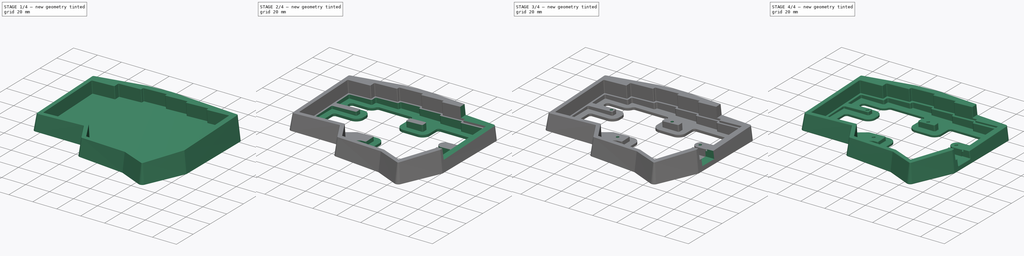
[diagram: build sequence overview — one tinted view per stage of 4, left to right]
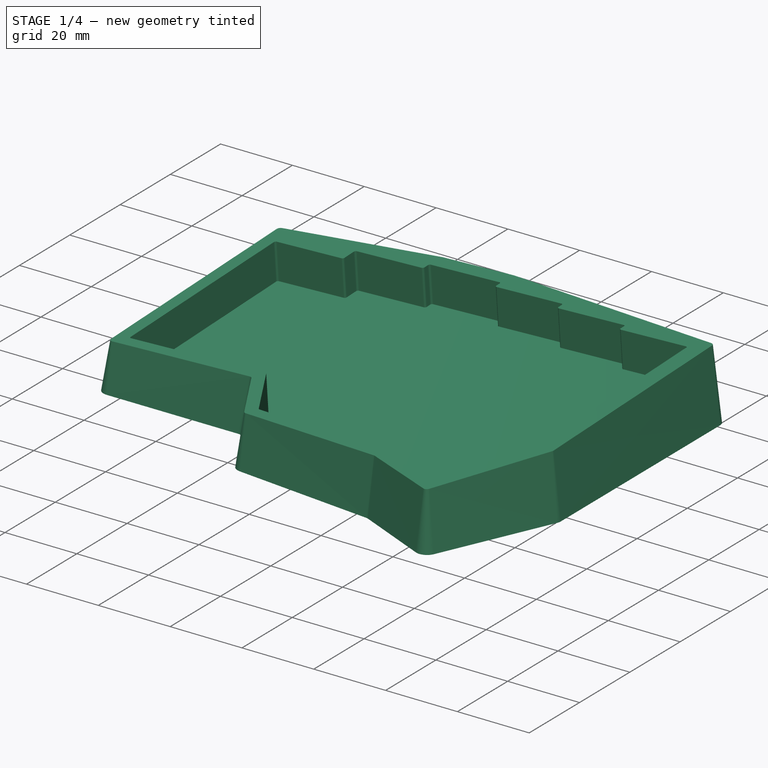
[diagram: stage 1 of 4 — iso view after this stage's code; geometry added in this stage tinted green]
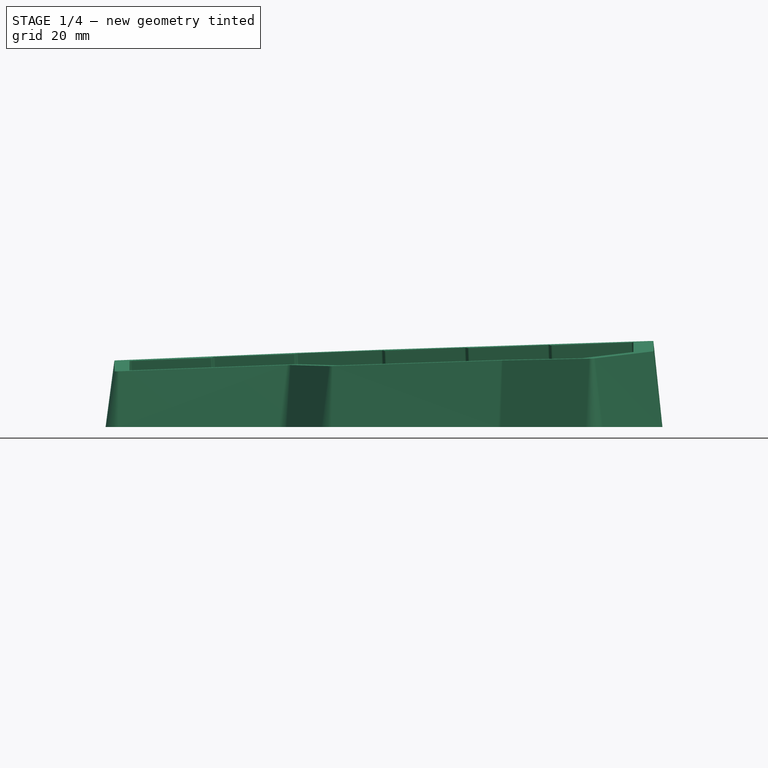
[diagram: stage 1 of 4 — front view after this stage's code; geometry added in this stage tinted green]
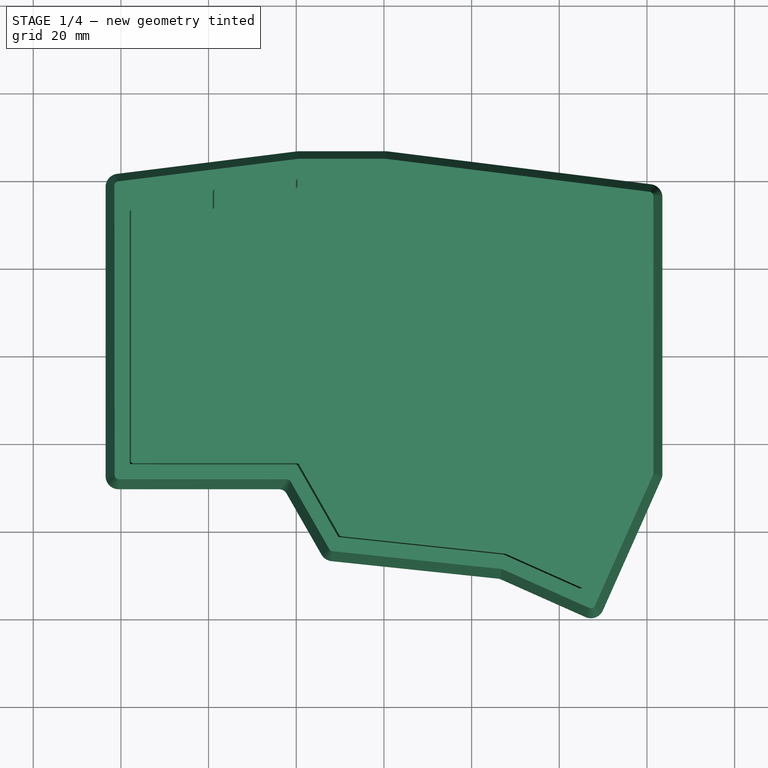
[diagram: stage 1 of 4 — top view after this stage's code; geometry added in this stage tinted green]
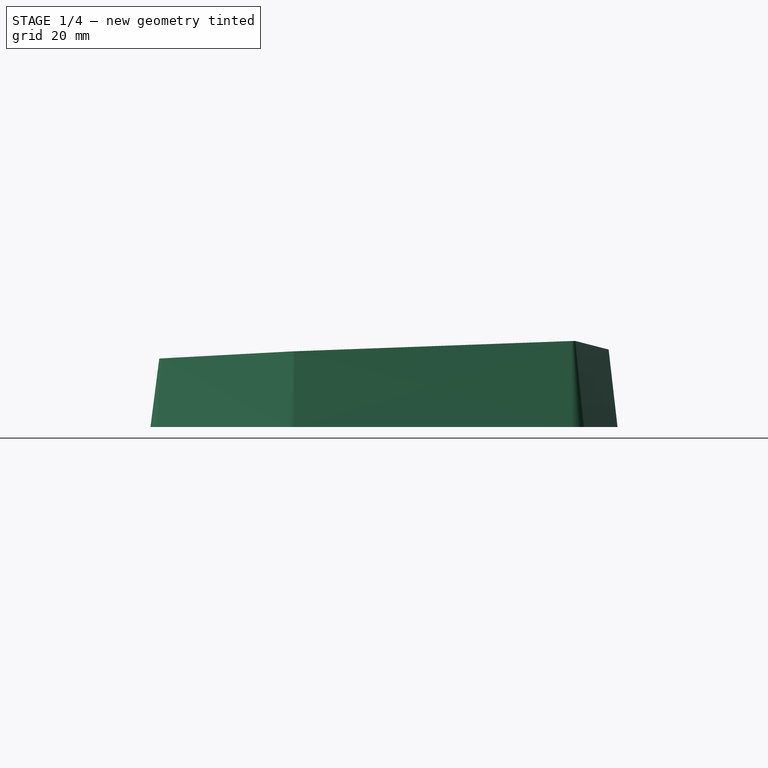
[diagram: stage 1 of 4 — right view after this stage's code; geometry added in this stage tinted green]
FCSTD DOCUMENT  (FreeCAD 0.20R)
Label: case
License: All rights reserved
LicenseURL: http://en.wikipedia.org/wiki/All_rights_reserved
objects: Sketcher::SketchObject×8, PartDesign::Pocket×5, PartDesign::Fillet×2, PartDesign::AdditiveLoft×1, PartDesign::Hole×1, PartDesign::Chamfer×1, PartDesign::Body×1
note: 29 computed .brp shape members not serialized (recipe doc carries the construction recipe); baked Part::Feature solids carry a one-line shape summary decoded from their .brp

FEATURE [Sketcher::SketchObject] Sketch
  FullyConstrained = false
  MapMode = 5
  Support = -> [XY_Plane]
  sketch-geometry (20):
    g0: LineSegment StartX=0.809664 StartY=46.8519 StartZ=0 EndX=60.906 EndY=39.3443 EndZ=0
    g1: LineSegment StartX=63.5342 StartY=-26.7612 StartZ=0 EndX=63.5342 EndY=36.3675 EndZ=0
    g2: LineSegment StartX=63.2748 StartY=-27.9814 StartZ=0 EndX=49.9566 EndY=-57.8945 EndZ=0
    g3: LineSegment StartX=-63.5 StartY=38.7422 StartZ=0 EndX=-63.5 EndY=-27.25 EndZ=0
    g4: LineSegment StartX=-60.8721 StartY=41.7191 StartZ=0 EndX=-19.8098 EndY=46.8518 EndZ=0
    g5: LineSegment StartX=0.437779 StartY=46.875 StartZ=0 EndX=-19.4377 EndY=46.875 EndZ=0
    g6: ArcOfCircle CenterX=60.5342 CenterY=36.3675 CenterZ=0 NormalX=0 NormalY=0 NormalZ=1 AngleXU=0 Radius=3 StartAngle=0 EndAngle=1.44652
    g7: ArcOfCircle CenterX=0.437779 CenterY=43.875 CenterZ=0 NormalX=0 NormalY=0 NormalZ=1 AngleXU=0 Radius=3 StartAngle=1.44652 EndAngle=1.5708
    g8: ArcOfCircle CenterX=-19.4377 CenterY=43.875 CenterZ=0 NormalX=0 NormalY=0 NormalZ=1 AngleXU=0 Radius=3 StartAngle=1.5708 EndAngle=1.69515
    g9: ArcOfCircle CenterX=-60.5 CenterY=38.7422 CenterZ=0 NormalX=0 NormalY=0 NormalZ=1 AngleXU=0 Radius=3 StartAngle=1.69515 EndAngle=3.14159
    g10: ArcOfCircle CenterX=-60.5 CenterY=-27.25 CenterZ=0 NormalX=0 NormalY=0 NormalZ=1 AngleXU=0 Radius=3 StartAngle=3.14159 EndAngle=4.71239
    g11: ArcOfCircle CenterX=-11.6492 CenterY=-43.6684 CenterZ=0 NormalX=0 NormalY=0 NormalZ=1 AngleXU=0 Radius=3 StartAngle=3.66074 EndAngle=4.60767
    g12: LineSegment StartX=-60.5 StartY=-30.25 StartZ=0 EndX=-23.9327 EndY=-30.25 EndZ=0
    g13: LineSegment StartX=-22.1963 StartY=-31.2577 StartZ=0 EndX=-14.2539 EndY=-45.1568 EndZ=0
    g14: ArcOfCircle CenterX=-23.9327 CenterY=-32.25 CenterZ=0 NormalX=0 NormalY=0 NormalZ=1 AngleXU=0 Radius=2 StartAngle=0.519146 EndAngle=1.5708
    g15: LineSegment StartX=-11.9628 StartY=-46.652 StartZ=0 EndX=26.0665 EndY=-50.649 EndZ=0
    g16: LineSegment StartX=26.6709 StartY=-50.8109 StartZ=0 EndX=45.9958 EndY=-59.4149 EndZ=0
    g17: ArcOfCircle CenterX=25.8574 CenterY=-52.638 CenterZ=0 NormalX=0 NormalY=0 NormalZ=1 AngleXU=0 Radius=2 StartAngle=1.15192 EndAngle=1.46608
    g18: ArcOfCircle CenterX=47.216 CenterY=-56.6743 CenterZ=0 NormalX=0 NormalY=0 NormalZ=1 AngleXU=0 Radius=3 StartAngle=4.29351 EndAngle=5.86431
    g19: ArcOfCircle CenterX=60.5342 CenterY=-26.7612 CenterZ=0 NormalX=0 NormalY=0 NormalZ=1 AngleXU=0 Radius=3 StartAngle=5.86431 EndAngle=6.28319
  constraints (20):
    c: Coincident(g3,g10)
    c: Coincident(g3,g9)
    c: Coincident(g4,g9)
    c: Coincident(g10,g12)
    c: Coincident(g12,g14)
    c: Coincident(g13,g14)
    c: Coincident(g4,g8)
    c: Coincident(g5,g8)
    c: Coincident(g11,g13)
    c: Coincident(g11,g15)
    c: Coincident(g5,g7)
    c: Coincident(g0,g7)
    c: Coincident(g15,g17)
    c: Coincident(g16,g17)
    c: Coincident(g16,g18)
    c: Coincident(g2,g18)
    c: Coincident(g0,g6)
    c: Coincident(g2,g19)
    c: Coincident(g1,g19)
    c: Coincident(g1,g6)
FEATURE [Sketcher::SketchObject] Sketch001
  AttachmentOffset = pos=(0,0,16) rot=(0.707107,-0.707107,0;0.05236rad)
  FullyConstrained = false
  MapMode = 5
  Placement = pos=(0,0,16) rot=(0.707107,-0.707107,0;0.05236rad)
  Support = -> [XY_Plane]
  sketch-geometry (20):
    g0: ArcOfCircle CenterX=-60.5 CenterY=38.7422 CenterZ=0 NormalX=0 NormalY=0 NormalZ=1 AngleXU=0 Radius=1 StartAngle=1.69515 EndAngle=3.14159
    g1: LineSegment StartX=-60.624 StartY=39.7345 StartZ=0 EndX=-19.5618 EndY=44.8673 EndZ=0
    g2: ArcOfCircle CenterX=-19.4377 CenterY=43.875 CenterZ=0 NormalX=0 NormalY=0 NormalZ=1 AngleXU=0 Radius=1 StartAngle=1.5708 EndAngle=1.69515
    g3: LineSegment StartX=0.437779 StartY=44.875 StartZ=0 EndX=-19.4377 EndY=44.875 EndZ=0
    g4: ArcOfCircle CenterX=0.437779 CenterY=43.875 CenterZ=0 NormalX=0 NormalY=0 NormalZ=1 AngleXU=0 Radius=1 StartAngle=1.44652 EndAngle=1.5708
    g5: LineSegment StartX=0.561741 StartY=44.8673 StartZ=0 EndX=60.6581 EndY=37.3597 EndZ=0
    g6: ArcOfCircle CenterX=60.5342 CenterY=36.3675 CenterZ=0 NormalX=0 NormalY=0 NormalZ=1 AngleXU=0 Radius=1 StartAngle=0 EndAngle=1.44652
    g7: LineSegment StartX=61.5342 StartY=-26.7612 StartZ=0 EndX=61.5342 EndY=36.3675 EndZ=0
    g8: ArcOfCircle CenterX=60.5342 CenterY=-26.7612 CenterZ=0 NormalX=0 NormalY=0 NormalZ=1 AngleXU=0 Radius=1 StartAngle=5.86431 EndAngle=6.28319
    g9: LineSegment StartX=61.4477 StartY=-27.168 StartZ=0 EndX=48.1295 EndY=-57.081 EndZ=0
    g10: ArcOfCircle CenterX=47.216 CenterY=-56.6743 CenterZ=0 NormalX=0 NormalY=0 NormalZ=1 AngleXU=0 Radius=1 StartAngle=4.29351 EndAngle=5.86431
    g11: LineSegment StartX=27.0503 StartY=-48.7906 StartZ=0 EndX=46.8093 EndY=-57.5879 EndZ=0
    g12: ArcOfCircle CenterX=26.6436 CenterY=-49.7041 CenterZ=0 NormalX=0 NormalY=0 NormalZ=1 AngleXU=0 Radius=1 StartAngle=1.15192 EndAngle=1.46608
    g13: LineSegment StartX=-11.7537 StartY=-44.6629 StartZ=0 EndX=26.7481 EndY=-48.7096 EndZ=0
    g14: ArcOfCircle CenterX=-11.6492 CenterY=-43.6684 CenterZ=0 NormalX=0 NormalY=0 NormalZ=1 AngleXU=0 Radius=1 StartAngle=3.66074 EndAngle=4.60767
    g15: LineSegment StartX=-21.3235 StartY=-28.7539 StartZ=0 EndX=-12.5174 EndY=-44.1645 EndZ=0
    g16: ArcOfCircle CenterX=-22.1918 CenterY=-29.25 CenterZ=0 NormalX=0 NormalY=0 NormalZ=1 AngleXU=0 Radius=1 StartAngle=0.519146 EndAngle=1.5708
    g17: LineSegment StartX=-60.5 StartY=-28.25 StartZ=0 EndX=-22.1918 EndY=-28.25 EndZ=0
    g18: LineSegment StartX=-61.5 StartY=38.7422 StartZ=0 EndX=-61.5 EndY=-27.25 EndZ=0
    g19: ArcOfCircle CenterX=-60.5 CenterY=-27.25 CenterZ=0 NormalX=0 NormalY=0 NormalZ=1 AngleXU=0 Radius=1 StartAngle=3.14159 EndAngle=4.71239
  constraints (20):
    c: Coincident(g18,g19)
    c: Coincident(g0,g18)
    c: Coincident(g0,g1)
    c: Coincident(g17,g19)
    c: Coincident(g16,g17)
    c: Coincident(g15,g16)
    c: Coincident(g1,g2)
    c: Coincident(g2,g3)
    c: Coincident(g14,g15)
    c: Coincident(g13,g14)
    c: Coincident(g3,g4)
    c: Coincident(g4,g5)
    c: Coincident(g12,g13)
    c: Coincident(g11,g12)
    c: Coincident(g10,g11)
    c: Coincident(g9,g10)
    c: Coincident(g5,g6)
    c: Coincident(g8,g9)
    c: Coincident(g7,g8)
    c: Coincident(g6,g7)
FEATURE [PartDesign::AdditiveLoft] AdditiveLoft
  Closed = true
  Profile = -> Sketch001
  Ruled = true
  Sections = -> [Sketch]
FEATURE [Sketcher::SketchObject] Sketch002
  FullyConstrained = false
  MapMode = 5
  Placement = pos=(-0.591302,-0.591302,15.9562) rot=(0.707289,-0.706804,-0.013092;0.052364rad)
  Support = -> [AdditiveLoft]
  sketch-geometry (36):
    g0: ArcOfCircle CenterX=-57 CenterY=-23.75 CenterZ=0 NormalX=0 NormalY=0 NormalZ=1 AngleXU=0 Radius=0.5 StartAngle=3.14159 EndAngle=4.71239
    g1: LineSegment StartX=-57.5 StartY=33.25 StartZ=0 EndX=-57.5 EndY=-23.75 EndZ=0
    g2: ArcOfCircle CenterX=-57 CenterY=33.25 CenterZ=0 NormalX=0 NormalY=0 NormalZ=1 AngleXU=0 Radius=0.5 StartAngle=1.5708 EndAngle=3.14159
    g3: LineSegment StartX=-39 StartY=33.75 StartZ=0 EndX=-57 EndY=33.75 EndZ=0
    g4: ArcOfCircle CenterX=-39 CenterY=34.25 CenterZ=0 NormalX=0 NormalY=0 NormalZ=1 AngleXU=0 Radius=0.5 StartAngle=4.71239 EndAngle=6.28319
    g5: LineSegment StartX=-38.5 StartY=38 StartZ=0 EndX=-38.5 EndY=34.25 EndZ=0
    g6: ArcOfCircle CenterX=-38 CenterY=38 CenterZ=0 NormalX=0 NormalY=0 NormalZ=1 AngleXU=0 Radius=0.5 StartAngle=1.5708 EndAngle=3.14159
    g7: LineSegment StartX=-20 StartY=38.5 StartZ=0 EndX=-38 EndY=38.5 EndZ=0
    g8: ArcOfCircle CenterX=-20 CenterY=39 CenterZ=0 NormalX=0 NormalY=0 NormalZ=1 AngleXU=0 Radius=0.5 StartAngle=4.71239 EndAngle=6.28319
    g9: LineSegment StartX=-19.5 StartY=40.375 StartZ=0 EndX=-19.5 EndY=39 EndZ=0
    g10: ArcOfCircle CenterX=-19 CenterY=40.375 CenterZ=0 NormalX=0 NormalY=0 NormalZ=1 AngleXU=0 Radius=0.5 StartAngle=1.5708 EndAngle=3.14159
    g11: LineSegment StartX=0 StartY=40.875 StartZ=0 EndX=-19 EndY=40.875 EndZ=0
    g12: ArcOfCircle CenterX=0 CenterY=40.375 CenterZ=0 NormalX=0 NormalY=0 NormalZ=1 AngleXU=0 Radius=0.5 StartAngle=0 EndAngle=1.5708
    g13: LineSegment StartX=0.5 StartY=39 StartZ=0 EndX=0.5 EndY=40.375 EndZ=0
    g14: ArcOfCircle CenterX=1 CenterY=39 CenterZ=0 NormalX=0 NormalY=0 NormalZ=1 AngleXU=0 Radius=0.5 StartAngle=3.14159 EndAngle=4.71239
    g15: LineSegment StartX=19 StartY=38.5 StartZ=0 EndX=1 EndY=38.5 EndZ=0
    g16: ArcOfCircle CenterX=19 CenterY=38 CenterZ=0 NormalX=0 NormalY=0 NormalZ=1 AngleXU=0 Radius=0.5 StartAngle=0 EndAngle=1.5708
    g17: LineSegment StartX=19.5 StartY=36.625 StartZ=0 EndX=19.5 EndY=38 EndZ=0
    g18: ArcOfCircle CenterX=20 CenterY=36.625 CenterZ=0 NormalX=0 NormalY=0 NormalZ=1 AngleXU=0 Radius=0.5 StartAngle=3.14159 EndAngle=4.71239
    g19: LineSegment StartX=38 StartY=36.125 StartZ=0 EndX=20 EndY=36.125 EndZ=0
    g20: ArcOfCircle CenterX=38 CenterY=35.625 CenterZ=0 NormalX=0 NormalY=0 NormalZ=1 AngleXU=0 Radius=0.5 StartAngle=0 EndAngle=1.5708
    g21: LineSegment StartX=38.5 StartY=34.25 StartZ=0 EndX=38.5 EndY=35.625 EndZ=0
    g22: ArcOfCircle CenterX=39 CenterY=34.25 CenterZ=0 NormalX=0 NormalY=0 NormalZ=1 AngleXU=0 Radius=0.5 StartAngle=3.14159 EndAngle=4.71239
    g23: LineSegment StartX=39 StartY=33.75 StartZ=0 EndX=57.0342 EndY=33.75 EndZ=0
    g24: ArcOfCircle CenterX=57.0342 CenterY=33.25 CenterZ=0 NormalX=0 NormalY=0 NormalZ=1 AngleXU=0 Radius=0.5 StartAngle=0 EndAngle=1.5708
    g25: LineSegment StartX=57.5342 StartY=-26.0173 StartZ=0 EndX=57.5342 EndY=33.25 EndZ=0
    g26: ArcOfCircle CenterX=57.0342 CenterY=-26.0173 CenterZ=0 NormalX=0 NormalY=0 NormalZ=1 AngleXU=0 Radius=0.5 StartAngle=5.86431 EndAngle=6.28319
    g27: LineSegment StartX=57.4909 StartY=-26.2206 StartZ=0 EndX=45.8989 EndY=-52.2567 EndZ=0
    g28: ArcOfCircle CenterX=45.4422 CenterY=-52.0533 CenterZ=0 NormalX=0 NormalY=0 NormalZ=1 AngleXU=0 Radius=0.5 StartAngle=4.29351 EndAngle=5.86431
    g29: LineSegment StartX=28.0261 StartY=-44.8465 StartZ=0 EndX=45.2388 EndY=-52.5101 EndZ=0
    g30: ArcOfCircle CenterX=27.8228 CenterY=-45.3033 CenterZ=0 NormalX=0 NormalY=0 NormalZ=1 AngleXU=0 Radius=0.5 StartAngle=1.15192 EndAngle=1.46608
    g31: LineSegment StartX=-9.55226 StartY=-40.8723 StartZ=0 EndX=27.875 EndY=-44.806 EndZ=0
    g32: ArcOfCircle CenterX=-9.5 CenterY=-40.375 CenterZ=0 NormalX=0 NormalY=0 NormalZ=1 AngleXU=0 Radius=0.5 StartAngle=3.66074 EndAngle=4.60767
    g33: LineSegment StartX=-57 StartY=-24.25 StartZ=0 EndX=-19.5803 EndY=-24.25 EndZ=0
    g34: LineSegment StartX=-19.1462 StartY=-24.5019 StartZ=0 EndX=-9.93412 EndY=-40.6231 EndZ=0
    g35: ArcOfCircle CenterX=-19.5803 CenterY=-24.75 CenterZ=0 NormalX=0 NormalY=0 NormalZ=1 AngleXU=0 Radius=0.5 StartAngle=0.519146 EndAngle=1.5708
  constraints (36):
    c: Coincident(g0,g1)
    c: Coincident(g1,g2)
    c: Coincident(g0,g33)
    c: Coincident(g2,g3)
    c: Coincident(g3,g4)
    c: Coincident(g4,g5)
    c: Coincident(g5,g6)
    c: Coincident(g6,g7)
    c: Coincident(g7,g8)
    c: Coincident(g33,g35)
    c: Coincident(g8,g9)
    c: Coincident(g9,g10)
    c: Coincident(g34,g35)
    c: Coincident(g10,g11)
    c: Coincident(g32,g34)
    c: Coincident(g31,g32)
    c: Coincident(g11,g12)
    c: Coincident(g13,g14)
    c: Coincident(g12,g13)
    c: Coincident(g14,g15)
    c: Coincident(g15,g16)
    c: Coincident(g17,g18)
    c: Coincident(g16,g17)
    c: Coincident(g18,g19)
    c: Coincident(g30,g31)
    c: Coincident(g29,g30)
    c: Coincident(g19,g20)
    c: Coincident(g21,g22)
    c: Coincident(g20,g21)
    c: Coincident(g22,g23)
    c: Coincident(g28,g29)
    c: Coincident(g27,g28)
    c: Coincident(g23,g24)
    c: Coincident(g26,g27)
    c: Coincident(g25,g26)
    c: Coincident(g24,g25)
FEATURE [PartDesign::Pocket] Pocket
  BaseFeature = -> AdditiveLoft
  Direction = (0.0370071,0.0370071,-0.99863)
  Length = 10
  Length2 = 5
  Profile = -> Sketch002
  ReferenceAxis = -> Sketch002 [N_Axis]
  Type = 0
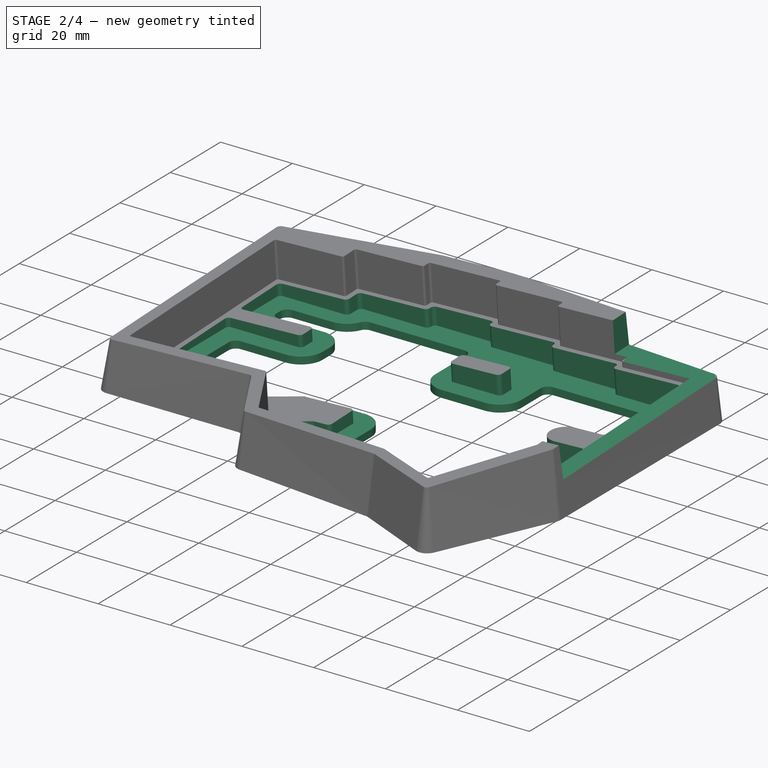
[diagram: stage 2 of 4 — iso view after this stage's code; geometry added in this stage tinted green]
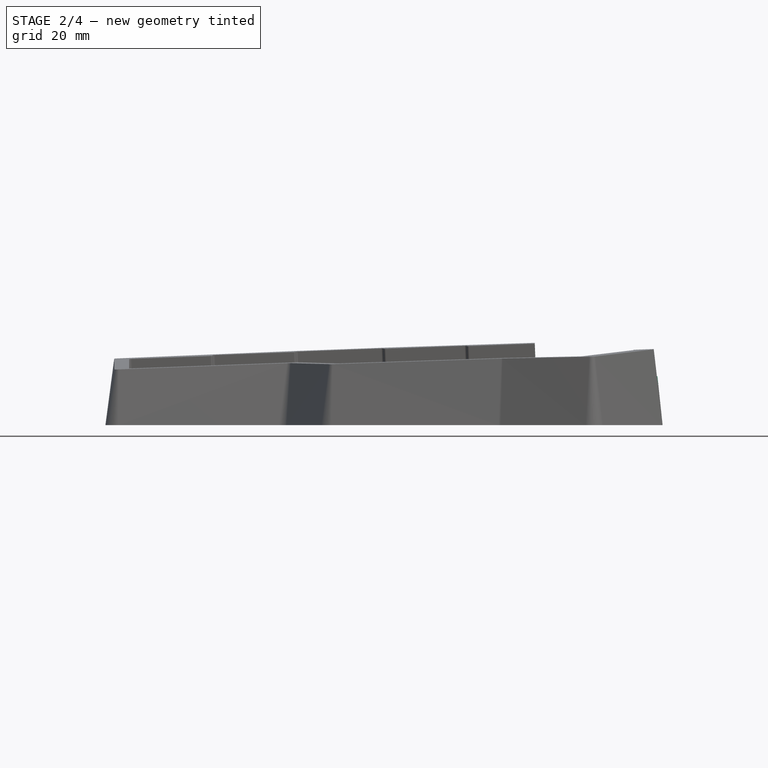
[diagram: stage 2 of 4 — front view after this stage's code; geometry added in this stage tinted green]
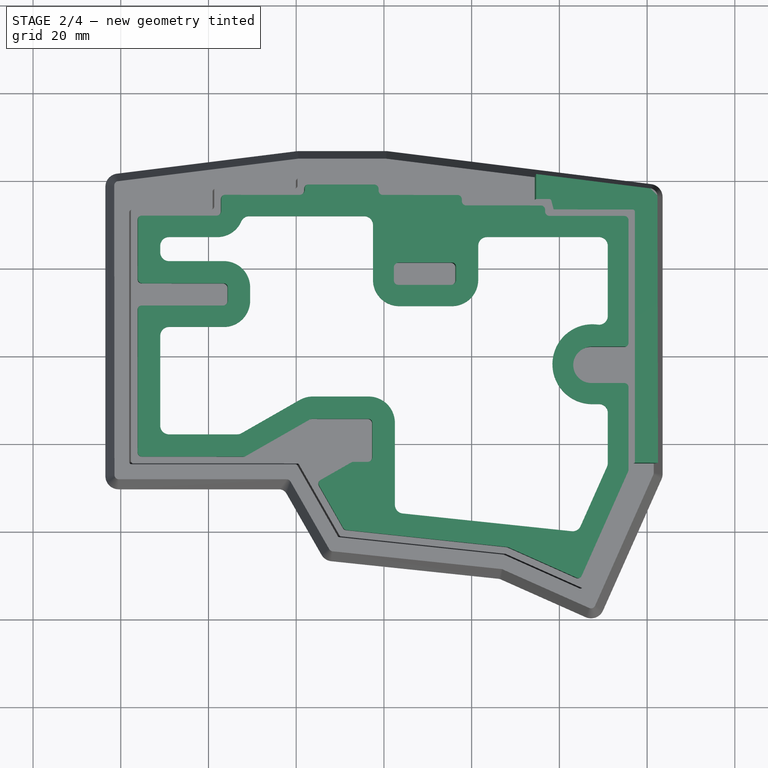
[diagram: stage 2 of 4 — top view after this stage's code; geometry added in this stage tinted green]
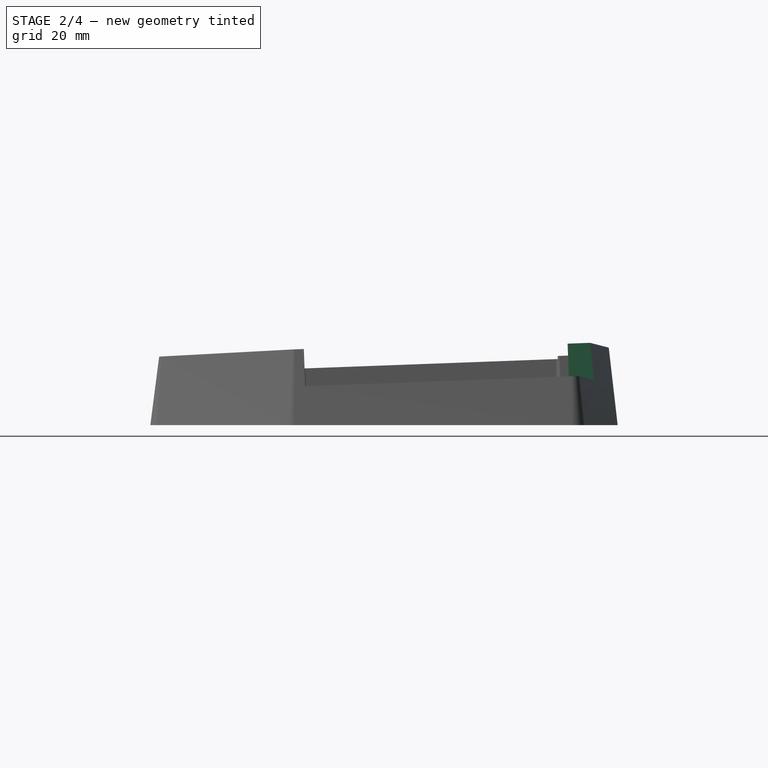
[diagram: stage 2 of 4 — right view after this stage's code; geometry added in this stage tinted green]
FEATURE [Sketcher::SketchObject] Sketch003
  FullyConstrained = false
  MapMode = 5
  Placement = pos=(-0.221231,-0.221231,5.96988) rot=(0.707289,-0.706804,-0.013092;0.052364rad)
  Support = -> [Pocket]
  sketch-geometry (68):
    g0: ArcOfCircle CenterX=-36.5 CenterY=15.75 CenterZ=0 NormalX=0 NormalY=0 NormalZ=1 AngleXU=0 Radius=1 StartAngle=0 EndAngle=1.5708
    g1: LineSegment StartX=-35.5 StartY=15.75 StartZ=0 EndX=-35.5 EndY=12.75 EndZ=0
    g2: ArcOfCircle CenterX=-36.5 CenterY=12.75 CenterZ=0 NormalX=0 NormalY=0 NormalZ=1 AngleXU=0 Radius=1 StartAngle=4.71239 EndAngle=6.28319
    g3: LineSegment StartX=-36.5 StartY=11.75 StartZ=0 EndX=-55 EndY=11.75 EndZ=0
    g4: ArcOfCircle CenterX=-55 CenterY=10.75 CenterZ=0 NormalX=0 NormalY=0 NormalZ=1 AngleXU=0 Radius=1 StartAngle=1.5708 EndAngle=3.14159
    g5: LineSegment StartX=-55 StartY=16.75 StartZ=0 EndX=-36.5 EndY=16.75 EndZ=0
    g6: ArcOfCircle CenterX=-55 CenterY=17.75 CenterZ=0 NormalX=0 NormalY=0 NormalZ=1 AngleXU=0 Radius=1 StartAngle=3.14159 EndAngle=4.71239
    g7: LineSegment StartX=-56 StartY=31.25 StartZ=0 EndX=-56 EndY=17.75 EndZ=0
    g8: ArcOfCircle CenterX=-55 CenterY=31.25 CenterZ=0 NormalX=0 NormalY=0 NormalZ=1 AngleXU=0 Radius=1 StartAngle=1.5708 EndAngle=3.14159
    g9: LineSegment StartX=-38 StartY=32.25 StartZ=0 EndX=-55 EndY=32.25 EndZ=0
    g10: ArcOfCircle CenterX=-38 CenterY=33.25 CenterZ=0 NormalX=0 NormalY=0 NormalZ=1 AngleXU=0 Radius=1 StartAngle=4.71239 EndAngle=6.28319
    g11: LineSegment StartX=-37 StartY=36 StartZ=0 EndX=-37 EndY=33.25 EndZ=0
    g12: ArcOfCircle CenterX=-36 CenterY=36 CenterZ=0 NormalX=0 NormalY=0 NormalZ=1 AngleXU=0 Radius=1 StartAngle=1.5708 EndAngle=3.14159
    g13: LineSegment StartX=-19 StartY=37 StartZ=0 EndX=-36 EndY=37 EndZ=0
    g14: ArcOfCircle CenterX=-19 CenterY=38 CenterZ=0 NormalX=0 NormalY=0 NormalZ=1 AngleXU=0 Radius=1 StartAngle=4.71239 EndAngle=6.28319
    g15: LineSegment StartX=-18 StartY=38.375 StartZ=0 EndX=-18 EndY=38 EndZ=0
    g16: ArcOfCircle CenterX=-17 CenterY=38.375 CenterZ=0 NormalX=0 NormalY=0 NormalZ=1 AngleXU=0 Radius=1 StartAngle=1.5708 EndAngle=3.14159
    g17: LineSegment StartX=-2 StartY=39.375 StartZ=0 EndX=-17 EndY=39.375 EndZ=0
    g18: ArcOfCircle CenterX=-2 CenterY=38.375 CenterZ=0 NormalX=0 NormalY=0 NormalZ=1 AngleXU=0 Radius=1 StartAngle=0 EndAngle=1.5708
    g19: LineSegment StartX=-1 StartY=38 StartZ=0 EndX=-1 EndY=38.375 EndZ=0
    g20: ArcOfCircle CenterX=0 CenterY=38 CenterZ=0 NormalX=0 NormalY=0 NormalZ=1 AngleXU=0 Radius=1 StartAngle=3.14159 EndAngle=4.71239
    g21: LineSegment StartX=17 StartY=37 StartZ=0 EndX=0 EndY=37 EndZ=0
    g22: ArcOfCircle CenterX=17 CenterY=36 CenterZ=0 NormalX=0 NormalY=0 NormalZ=1 AngleXU=0 Radius=1 StartAngle=0 EndAngle=1.5708
    g23: LineSegment StartX=18 StartY=35.625 StartZ=0 EndX=18 EndY=36 EndZ=0
    g24: ArcOfCircle CenterX=19 CenterY=35.625 CenterZ=0 NormalX=0 NormalY=0 NormalZ=1 AngleXU=0 Radius=1 StartAngle=3.14159 EndAngle=4.71239
    g25: LineSegment StartX=36 StartY=34.625 StartZ=0 EndX=19 EndY=34.625 EndZ=0
    g26: ArcOfCircle CenterX=36 CenterY=33.625 CenterZ=0 NormalX=0 NormalY=0 NormalZ=1 AngleXU=0 Radius=1 StartAngle=0 EndAngle=1.5708
    g27: LineSegment StartX=37 StartY=33.25 StartZ=0 EndX=37 EndY=33.625 EndZ=0
    g28: ArcOfCircle CenterX=38 CenterY=33.25 CenterZ=0 NormalX=0 NormalY=0 NormalZ=1 AngleXU=0 Radius=1 StartAngle=3.14159 EndAngle=4.71239
    g29: LineSegment StartX=38 StartY=32.25 StartZ=0 EndX=55.0342 EndY=32.25 EndZ=0
    g30: ArcOfCircle CenterX=55.0342 CenterY=31.25 CenterZ=0 NormalX=0 NormalY=0 NormalZ=1 AngleXU=0 Radius=1 StartAngle=0 EndAngle=1.5708
    g31: ArcOfCircle CenterX=55.0342 CenterY=-25.5922 CenterZ=0 NormalX=0 NormalY=0 NormalZ=1 AngleXU=0 Radius=1 StartAngle=5.86431 EndAngle=6.28319
    g32: LineSegment StartX=45.3421 StartY=-49.8195 StartZ=0 EndX=55.9477 EndY=-25.9989 EndZ=0
    g33: ArcOfCircle CenterX=44.4286 CenterY=-49.4128 CenterZ=0 NormalX=0 NormalY=0 NormalZ=1 AngleXU=0 Radius=1 StartAngle=4.29351 EndAngle=5.86431
    g34: LineSegment StartX=28.4915 StartY=-43.4118 StartZ=0 EndX=44.0218 EndY=-50.3263 EndZ=0
    g35: ArcOfCircle CenterX=28.0848 CenterY=-44.3253 CenterZ=0 NormalX=0 NormalY=0 NormalZ=1 AngleXU=0 Radius=1 StartAngle=1.15192 EndAngle=1.46608
    g36: LineSegment StartX=-8.37642 StartY=-39.4876 StartZ=0 EndX=28.1893 EndY=-43.3308 EndZ=0
    g37: ArcOfCircle CenterX=-8.27189 CenterY=-38.4931 CenterZ=0 NormalX=0 NormalY=0 NormalZ=1 AngleXU=0 Radius=1 StartAngle=3.66074 EndAngle=4.60767
    g38: LineSegment StartX=-56 StartY=10.75 StartZ=0 EndX=-56 EndY=-21.75 EndZ=0
    g39: ArcOfCircle CenterX=-55 CenterY=-21.75 CenterZ=0 NormalX=0 NormalY=0 NormalZ=1 AngleXU=0 Radius=1 StartAngle=3.14159 EndAngle=4.71239
    g40: ArcOfCircle CenterX=-3.5 CenterY=-15.125 CenterZ=0 NormalX=0 NormalY=0 NormalZ=1 AngleXU=0 Radius=1 StartAngle=0 EndAngle=1.5708
    g41: LineSegment StartX=-2.5 StartY=-15.125 StartZ=0 EndX=-2.5 EndY=-22.875 EndZ=0
    g42: ArcOfCircle CenterX=-3.5 CenterY=-22.875 CenterZ=0 NormalX=0 NormalY=0 NormalZ=1 AngleXU=0 Radius=1 StartAngle=4.71239 EndAngle=6.28319
    g43: ArcOfCircle CenterX=15.5 CenterY=20.5 CenterZ=0 NormalX=0 NormalY=0 NormalZ=1 AngleXU=0 Radius=1 StartAngle=0 EndAngle=1.5708
    g44: LineSegment StartX=16.5 StartY=17.5 StartZ=0 EndX=16.5 EndY=20.5 EndZ=0
    g45: ArcOfCircle CenterX=15.5 CenterY=17.5 CenterZ=0 NormalX=0 NormalY=0 NormalZ=1 AngleXU=0 Radius=1 StartAngle=4.71239 EndAngle=6.28319
    g46: LineSegment StartX=15.5 StartY=16.5 StartZ=0 EndX=3.5 EndY=16.5 EndZ=0
    g47: ArcOfCircle CenterX=3.5 CenterY=17.5 CenterZ=0 NormalX=0 NormalY=0 NormalZ=1 AngleXU=0 Radius=1 StartAngle=3.14159 EndAngle=4.71239
    g48: LineSegment StartX=2.5 StartY=17.5 StartZ=0 EndX=2.5 EndY=20.5 EndZ=0
    g49: LineSegment StartX=3.5 StartY=21.5 StartZ=0 EndX=15.5 EndY=21.5 EndZ=0
    g50: ArcOfCircle CenterX=3.5 CenterY=20.5 CenterZ=0 NormalX=0 NormalY=0 NormalZ=1 AngleXU=0 Radius=1 StartAngle=1.5708 EndAngle=3.14159
    g51: LineSegment StartX=-6.73444 StartY=-23.875 StartZ=0 EndX=-3.5 EndY=-23.875 EndZ=0
    g52: ArcOfCircle CenterX=-6.73444 CenterY=-24.875 CenterZ=0 NormalX=0 NormalY=0 NormalZ=1 AngleXU=0 Radius=1 StartAngle=1.5708 EndAngle=2.08994
    g53: LineSegment StartX=-16.2344 StartY=-14.125 StartZ=0 EndX=-3.5 EndY=-14.125 EndZ=0
    g54: ArcOfCircle CenterX=-16.2344 CenterY=-15.125 CenterZ=0 NormalX=0 NormalY=0 NormalZ=1 AngleXU=0 Radius=1 StartAngle=1.5708 EndAngle=2.08994
    g55: LineSegment StartX=-31.3632 StartY=-22.6182 StartZ=0 EndX=-16.7306 EndY=-14.2568 EndZ=0
    g56: LineSegment StartX=-55 StartY=-22.75 StartZ=0 EndX=-31.8593 EndY=-22.75 EndZ=0
    g57: ArcOfCircle CenterX=-31.8593 CenterY=-21.75 CenterZ=0 NormalX=0 NormalY=0 NormalZ=1 AngleXU=0 Radius=1 StartAngle=4.71239 EndAngle=5.23154
    g58: LineSegment StartX=-14.6279 StartY=-29.3856 StartZ=0 EndX=-9.14013 EndY=-38.9892 EndZ=0
    g59: LineSegment StartX=-14.2558 StartY=-28.0212 StartZ=0 EndX=-7.23057 EndY=-24.0068 EndZ=0
    g60: ArcOfCircle CenterX=-13.7597 CenterY=-28.8894 CenterZ=0 NormalX=0 NormalY=0 NormalZ=1 AngleXU=0 Radius=1 StartAngle=2.08994 EndAngle=3.66074
    g61: ArcOfCircle CenterX=47.5171 CenterY=-1.75 CenterZ=0 NormalX=0 NormalY=0 NormalZ=1 AngleXU=0 Radius=4.1 StartAngle=1.5708 EndAngle=4.71239
    g62: LineSegment StartX=55.0342 StartY=2.35 StartZ=0 EndX=47.5171 EndY=2.35 EndZ=0
    g63: LineSegment StartX=56.0342 StartY=3.35 StartZ=0 EndX=56.0342 EndY=31.25 EndZ=0
    g64: ArcOfCircle CenterX=55.0342 CenterY=3.35 CenterZ=0 NormalX=0 NormalY=0 NormalZ=1 AngleXU=0 Radius=1 StartAngle=4.71239 EndAngle=6.28319
    g65: LineSegment StartX=55.0342 StartY=-5.85 StartZ=0 EndX=47.5171 EndY=-5.85 EndZ=0
    g66: LineSegment StartX=56.0342 StartY=-25.5922 StartZ=0 EndX=56.0342 EndY=-6.85 EndZ=0
    g67: ArcOfCircle CenterX=55.0342 CenterY=-6.85 CenterZ=0 NormalX=0 NormalY=0 NormalZ=1 AngleXU=0 Radius=1 StartAngle=0 EndAngle=1.5708
  constraints (68):
    c: Coincident(g38,g39)
    c: Coincident(g4,g38)
    c: Coincident(g6,g7)
    c: Coincident(g7,g8)
    c: Coincident(g39,g56)
    c: Coincident(g3,g4)
    c: Coincident(g5,g6)
    c: Coincident(g8,g9)
    c: Coincident(g9,g10)
    c: Coincident(g10,g11)
    c: Coincident(g11,g12)
    c: Coincident(g2,g3)
    c: Coincident(g0,g5)
    c: Coincident(g12,g13)
    c: Coincident(g1,g2)
    c: Coincident(g0,g1)
    c: Coincident(g56,g57)
    c: Coincident(g55,g57)
    c: Coincident(g13,g14)
    c: Coincident(g14,g15)
    c: Coincident(g15,g16)
    c: Coincident(g16,g17)
    c: Coincident(g54,g55)
    c: Coincident(g53,g54)
    c: Coincident(g58,g60)
    c: Coincident(g59,g60)
    c: Coincident(g37,g58)
    c: Coincident(g36,g37)
    c: Coincident(g52,g59)
    c: Coincident(g51,g52)
    c: Coincident(g42,g51)
    c: Coincident(g40,g53)
    c: Coincident(g41,g42)
    c: Coincident(g40,g41)
    c: Coincident(g17,g18)
    c: Coincident(g19,g20)
    c: Coincident(g18,g19)
    c: Coincident(g20,g21)
    c: Coincident(g47,g48)
    c: Coincident(g48,g50)
    c: Coincident(g46,g47)
    c: Coincident(g49,g50)
    c: Coincident(g45,g46)
    c: Coincident(g43,g49)
    c: Coincident(g44,g45)
    c: Coincident(g43,g44)
    c: Coincident(g21,g22)
    c: Coincident(g23,g24)
    c: Coincident(g22,g23)
    c: Coincident(g24,g25)
    c: Coincident(g35,g36)
    c: Coincident(g34,g35)
    c: Coincident(g25,g26)
    c: Coincident(g27,g28)
    c: Coincident(g26,g27)
    c: Coincident(g28,g29)
    c: Coincident(g33,g34)
    c: Coincident(g32,g33)
    c: Coincident(g61,g65)
    c: Coincident(g61,g62)
    c: Coincident(g65,g67)
    c: Coincident(g62,g64)
    c: Coincident(g29,g30)
    c: Coincident(g31,g32)
    c: Coincident(g31,g66)
    c: Coincident(g66,g67)
    c: Coincident(g63,g64)
    c: Coincident(g30,g63)
FEATURE [PartDesign::Pocket] Pocket001
  BaseFeature = -> Pocket
  Direction = (0.0370071,0.0370071,-0.99863)
  Length = 0
  Length2 = 5
  Offset = -2
  Profile = -> Sketch003
  ReferenceAxis = -> Sketch003 [N_Axis]
  Type = 3
  UpToFace = -> Pocket [Face58]
FEATURE [Sketcher::SketchObject] Sketch004
  FullyConstrained = false
  MapMode = 5
  Placement = pos=(0,0,1.99726) rot=(0,0,1;0rad)
  Support = -> [Pocket001]
  sketch-geometry (42):
    g0: ArcOfCircle CenterX=-36.5 CenterY=12.75 CenterZ=0 NormalX=0 NormalY=0 NormalZ=1 AngleXU=0 Radius=6 StartAngle=4.71239 EndAngle=6.28319
    g1: LineSegment StartX=-30.5 StartY=15.75 StartZ=0 EndX=-30.5 EndY=12.75 EndZ=0
    g2: ArcOfCircle CenterX=-36.5 CenterY=15.75 CenterZ=0 NormalX=0 NormalY=0 NormalZ=1 AngleXU=0 Radius=6 StartAngle=0 EndAngle=1.5708
    g3: ArcOfCircle CenterX=3.5 CenterY=17.5 CenterZ=0 NormalX=0 NormalY=0 NormalZ=1 AngleXU=0 Radius=6 StartAngle=3.14159 EndAngle=4.71239
    g4: LineSegment StartX=15.5 StartY=11.5 StartZ=0 EndX=3.5 EndY=11.5 EndZ=0
    g5: ArcOfCircle CenterX=15.5 CenterY=17.5 CenterZ=0 NormalX=0 NormalY=0 NormalZ=1 AngleXU=0 Radius=6 StartAngle=4.71239 EndAngle=6.28319
    g6: LineSegment StartX=-16.2344 StartY=-9.125 StartZ=0 EndX=-3.5 EndY=-9.125 EndZ=0
    g7: ArcOfCircle CenterX=-3.5 CenterY=-15.125 CenterZ=0 NormalX=0 NormalY=0 NormalZ=1 AngleXU=0 Radius=6 StartAngle=0 EndAngle=1.5708
    g8: LineSegment StartX=-38 StartY=27.25 StartZ=0 EndX=-49 EndY=27.25 EndZ=0
    g9: ArcOfCircle CenterX=-49 CenterY=25.25 CenterZ=0 NormalX=0 NormalY=0 NormalZ=1 AngleXU=0 Radius=2 StartAngle=1.5708 EndAngle=3.14159
    g10: LineSegment StartX=-51 StartY=25.25 StartZ=0 EndX=-51 EndY=23.75 EndZ=0
    g11: LineSegment StartX=-49 StartY=21.75 StartZ=0 EndX=-36.5 EndY=21.75 EndZ=0
    g12: ArcOfCircle CenterX=-49 CenterY=23.75 CenterZ=0 NormalX=0 NormalY=0 NormalZ=1 AngleXU=0 Radius=2 StartAngle=3.14159 EndAngle=4.71239
    g13: LineSegment StartX=-36.5 StartY=6.75 StartZ=0 EndX=-49 EndY=6.75 EndZ=0
    g14: ArcOfCircle CenterX=-49 CenterY=4.75 CenterZ=0 NormalX=0 NormalY=0 NormalZ=1 AngleXU=0 Radius=2 StartAngle=1.5708 EndAngle=3.14159
    g15: LineSegment StartX=-51 StartY=4.75 StartZ=0 EndX=-51 EndY=-15.75 EndZ=0
    g16: ArcOfCircle CenterX=-49 CenterY=-15.75 CenterZ=0 NormalX=0 NormalY=0 NormalZ=1 AngleXU=0 Radius=2 StartAngle=3.14159 EndAngle=4.71239
    g17: LineSegment StartX=-32.4604 StartY=-17.4865 StartZ=0 EndX=-19.2113 EndY=-9.91554 EndZ=0
    g18: LineSegment StartX=-49 StartY=-17.75 StartZ=0 EndX=-33.4527 EndY=-17.75 EndZ=0
    g19: ArcOfCircle CenterX=-33.4527 CenterY=-15.75 CenterZ=0 NormalX=0 NormalY=0 NormalZ=1 AngleXU=0 Radius=2 StartAngle=4.71239 EndAngle=5.23154
    g20: ArcOfCircle CenterX=-16.2344 CenterY=-15.125 CenterZ=0 NormalX=0 NormalY=0 NormalZ=1 AngleXU=0 Radius=6 StartAngle=1.5708 EndAngle=2.08994
    g21: LineSegment StartX=2.5 StartY=-15.125 StartZ=0 EndX=2.5 EndY=-33.8024 EndZ=0
    g22: ArcOfCircle CenterX=4.5 CenterY=-33.8024 CenterZ=0 NormalX=0 NormalY=0 NormalZ=1 AngleXU=0 Radius=2 StartAngle=3.14159 EndAngle=4.60767
    g23: LineSegment StartX=4.29094 StartY=-35.7914 StartZ=0 EndX=42.7998 EndY=-39.8389 EndZ=0
    g24: ArcOfCircle CenterX=43.0089 CenterY=-37.8498 CenterZ=0 NormalX=0 NormalY=0 NormalZ=1 AngleXU=0 Radius=2 StartAngle=4.60767 EndAngle=5.86431
    g25: LineSegment StartX=44.836 StartY=-38.6633 StartZ=0 EndX=50.8613 EndY=-25.1303 EndZ=0
    g26: ArcOfCircle CenterX=49.0342 CenterY=-24.3168 CenterZ=0 NormalX=0 NormalY=0 NormalZ=1 AngleXU=0 Radius=2 StartAngle=5.86431 EndAngle=6.28319
    g27: LineSegment StartX=49.0342 StartY=-10.85 StartZ=0 EndX=47.5171 EndY=-10.85 EndZ=0
    g28: LineSegment StartX=51.0342 StartY=-24.3168 StartZ=0 EndX=51.0342 EndY=-12.85 EndZ=0
    g29: ArcOfCircle CenterX=49.0342 CenterY=-12.85 CenterZ=0 NormalX=0 NormalY=0 NormalZ=1 AngleXU=0 Radius=2 StartAngle=0 EndAngle=1.5708
    g30: ArcOfCircle CenterX=47.5171 CenterY=-1.75 CenterZ=0 NormalX=0 NormalY=0 NormalZ=1 AngleXU=0 Radius=9.1 StartAngle=1.43369 EndAngle=4.71239
    g31: ArcOfCircle CenterX=49.0342 CenterY=9.24584 CenterZ=0 NormalX=0 NormalY=0 NormalZ=1 AngleXU=0 Radius=2 StartAngle=4.57529 EndAngle=6.28319
    g32: LineSegment StartX=51.0342 StartY=9.24584 StartZ=0 EndX=51.0342 EndY=25.25 EndZ=0
    g33: ArcOfCircle CenterX=49.0342 CenterY=25.25 CenterZ=0 NormalX=0 NormalY=0 NormalZ=1 AngleXU=0 Radius=2 StartAngle=0 EndAngle=1.5708
    g34: LineSegment StartX=23.5 StartY=27.25 StartZ=0 EndX=49.0342 EndY=27.25 EndZ=0
    g35: LineSegment StartX=21.5 StartY=17.5 StartZ=0 EndX=21.5 EndY=25.25 EndZ=0
    g36: ArcOfCircle CenterX=23.5 CenterY=25.25 CenterZ=0 NormalX=0 NormalY=0 NormalZ=1 AngleXU=0 Radius=2 StartAngle=1.5708 EndAngle=3.14159
    g37: LineSegment StartX=-2.5 StartY=17.5 StartZ=0 EndX=-2.5 EndY=30 EndZ=0
    g38: ArcOfCircle CenterX=-4.5 CenterY=30 CenterZ=0 NormalX=0 NormalY=0 NormalZ=1 AngleXU=0 Radius=2 StartAngle=0 EndAngle=1.5708
    g39: LineSegment StartX=-30.6899 StartY=32 StartZ=0 EndX=-4.5 EndY=32 EndZ=0
    g40: ArcOfCircle CenterX=-38 CenterY=33.25 CenterZ=0 NormalX=0 NormalY=0 NormalZ=1 AngleXU=0 Radius=6 StartAngle=4.71239 EndAngle=5.86484
    g41: ArcOfCircle CenterX=-30.6899 CenterY=30 CenterZ=0 NormalX=0 NormalY=0 NormalZ=1 AngleXU=0 Radius=2 StartAngle=1.5708 EndAngle=2.72325
  constraints (42):
    c: Coincident(g15,g16)
    c: Coincident(g14,g15)
    c: Coincident(g10,g12)
    c: Coincident(g9,g10)
    c: Coincident(g16,g18)
    c: Coincident(g13,g14)
    c: Coincident(g11,g12)
    c: Coincident(g8,g9)
    c: Coincident(g8,g40)
    c: Coincident(g0,g13)
    c: Coincident(g2,g11)
    c: Coincident(g18,g19)
    c: Coincident(g40,g41)
    c: Coincident(g17,g19)
    c: Coincident(g39,g41)
    c: Coincident(g0,g1)
    c: Coincident(g1,g2)
    c: Coincident(g17,g20)
    c: Coincident(g6,g20)
    c: Coincident(g38,g39)
    c: Coincident(g6,g7)
    c: Coincident(g3,g37)
    c: Coincident(g37,g38)
    c: Coincident(g21,g22)
    c: Coincident(g7,g21)
    c: Coincident(g3,g4)
    c: Coincident(g22,g23)
    c: Coincident(g4,g5)
    c: Coincident(g5,g35)
    c: Coincident(g35,g36)
    c: Coincident(g34,g36)
    c: Coincident(g23,g24)
    c: Coincident(g24,g25)
    c: Coincident(g27,g30)
    c: Coincident(g30,g31)
    c: Coincident(g27,g29)
    c: Coincident(g33,g34)
    c: Coincident(g25,g26)
    c: Coincident(g26,g28)
    c: Coincident(g28,g29)
    c: Coincident(g31,g32)
    c: Coincident(g32,g33)
FEATURE [PartDesign::Pocket] Pocket002
  BaseFeature = -> Pocket001
  Direction = (0,0,-1)
  Length = 5
  Length2 = 5
  Profile = -> Sketch004
  ReferenceAxis = -> Sketch004 [N_Axis]
  Type = 1
FEATURE [Sketcher::SketchObject] Sketch005
  ExternalGeometry = -> [Pocket002]
  FullyConstrained = true
  MapMode = 5
  Placement = pos=(-0.591302,-0.591302,15.9562) rot=(0.707289,-0.706804,-0.013092;0.052364rad)
  Support = -> [AdditiveLoft]
  sketch-geometry (4):
    g0: LineSegment StartX=35 StartY=-24.0173 StartZ=0 EndX=75 EndY=-24.0173 EndZ=0
    g1: LineSegment StartX=75 StartY=-24.0173 StartZ=0 EndX=75 EndY=45.9827 EndZ=0
    g2: LineSegment StartX=75 StartY=45.9827 StartZ=0 EndX=35 EndY=45.9827 EndZ=0
    g3: LineSegment StartX=35 StartY=45.9827 StartZ=0 EndX=35 EndY=-24.0173 EndZ=0
  constraints (12):
    c: Coincident(g0,g1)
    c: Coincident(g1,g2)
    c: Coincident(g2,g3)
    c: Coincident(g3,g0)
    c: Horizontal(g0)
    c: Horizontal(g2)
    c: Vertical(g1)
    c: Vertical(g3)
    c: Distance(g-4,g0) = 2
    c: Distance(g-3,g3) = 4
    c: Distance(g2) = 40
    c: Distance(g1) = 70
FEATURE [PartDesign::Pocket] Pocket003
  BaseFeature = -> Pocket002
  Direction = (0.0370071,0.0370071,-0.99863)
  Length = 0
  Length2 = 5
  Offset = -1.5
  Profile = -> Sketch005
  ReferenceAxis = -> Sketch005 [N_Axis]
  Type = 3
  UpToFace = -> Pocket002 [Face59]
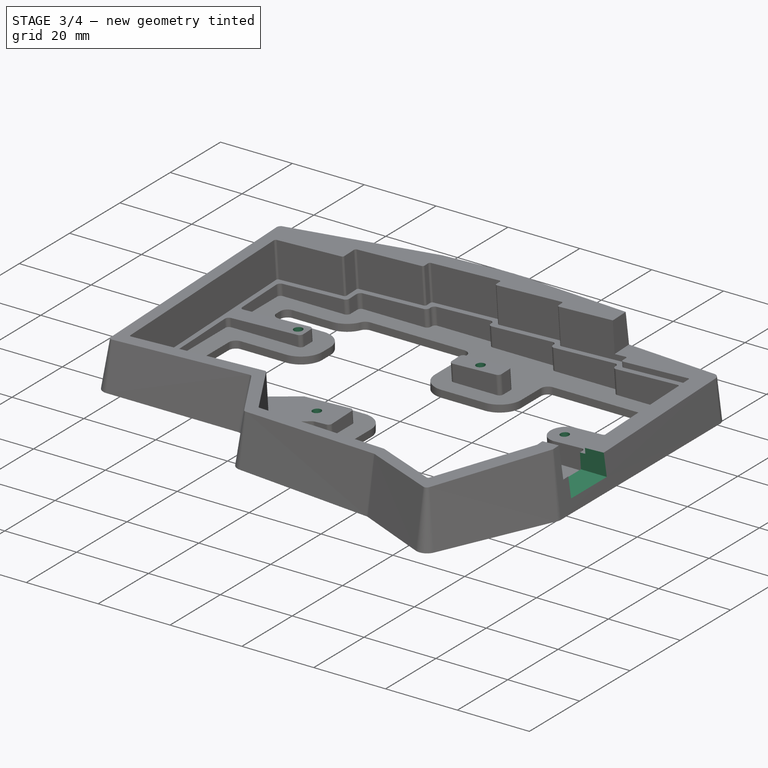
[diagram: stage 3 of 4 — iso view after this stage's code; geometry added in this stage tinted green]
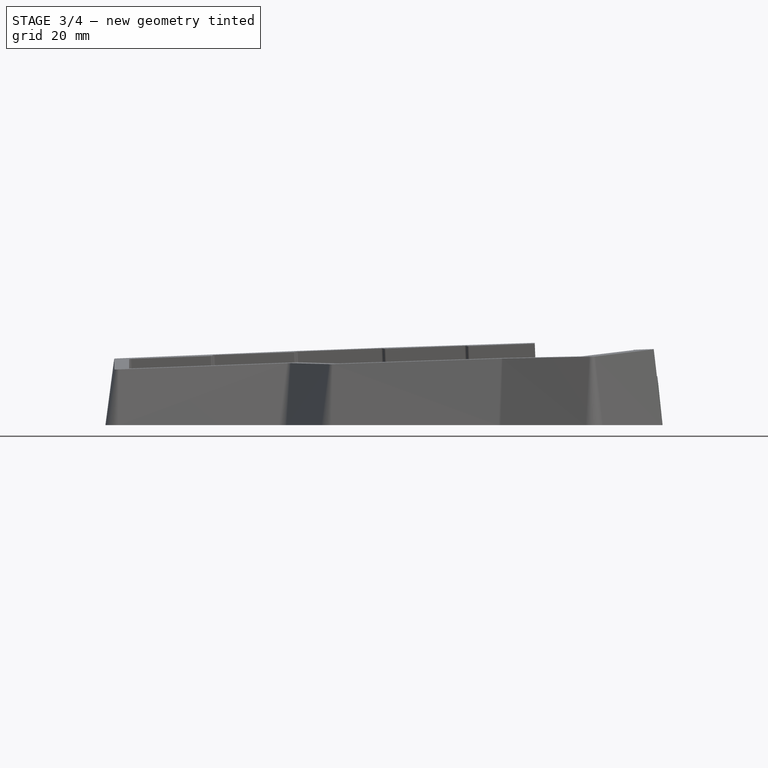
[diagram: stage 3 of 4 — front view after this stage's code; geometry added in this stage tinted green]
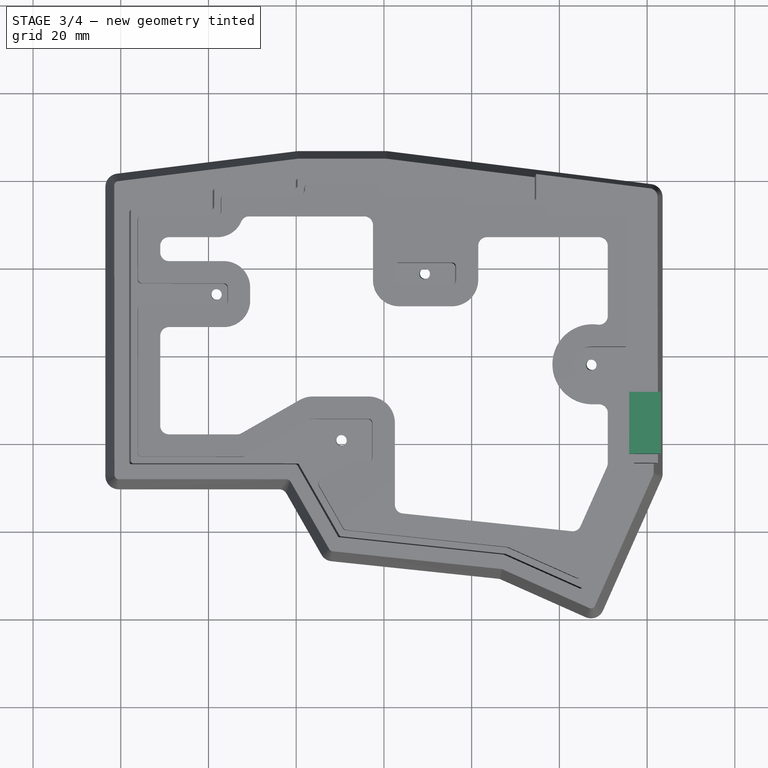
[diagram: stage 3 of 4 — top view after this stage's code; geometry added in this stage tinted green]
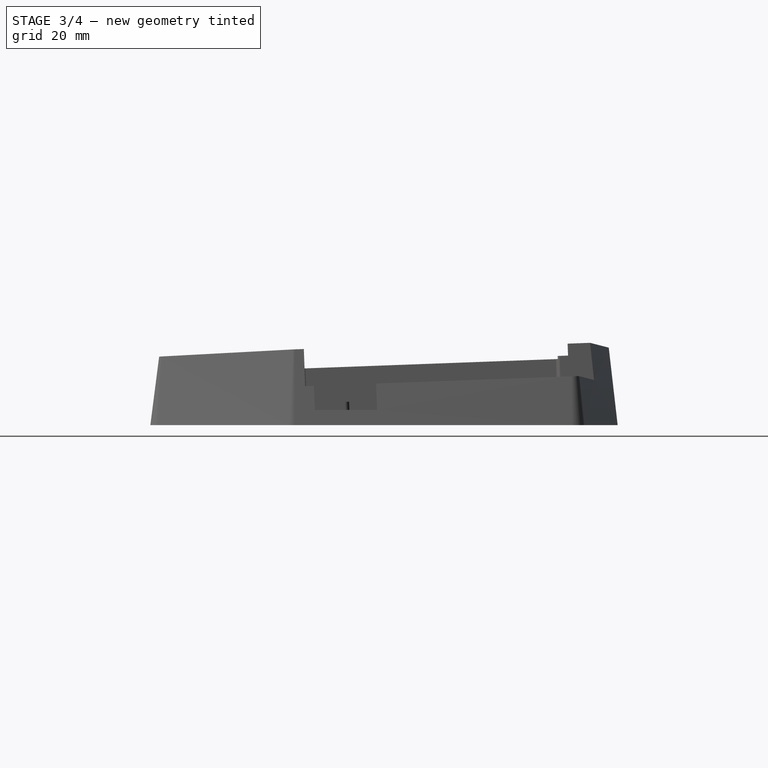
[diagram: stage 3 of 4 — right view after this stage's code; geometry added in this stage tinted green]
FEATURE [Sketcher::SketchObject] Sketch006
  ExternalGeometry = -> [Pocket003]
  FullyConstrained = true
  MapMode = 5
  Placement = pos=(-0.276742,-0.276742,7.46782) rot=(0.707289,-0.706804,-0.013092;0.052364rad)
  Support = -> [Pocket003]
  sketch-geometry (4):
    g0: LineSegment StartX=76.0342 StartY=-22.0173 StartZ=0 EndX=46.0342 EndY=-22.0173 EndZ=0
    g1: LineSegment StartX=46.0342 StartY=-22.0173 StartZ=0 EndX=46.0342 EndY=-7.85 EndZ=0
    g2: LineSegment StartX=46.0342 StartY=-7.85 StartZ=0 EndX=76.0342 EndY=-7.85 EndZ=0
    g3: LineSegment StartX=76.0342 StartY=-7.85 StartZ=0 EndX=76.0342 EndY=-22.0173 EndZ=0
  constraints (12):
    c: Coincident(g0,g1)
    c: Coincident(g1,g2)
    c: Coincident(g2,g3)
    c: Coincident(g3,g0)
    c: Horizontal(g0)
    c: Horizontal(g2)
    c: Vertical(g1)
    c: Vertical(g3)
    c: Distance(g-3,g2) = 1
    c: Distance(g-4,g0) = 2
    c: Distance(g0) = 30
    c: DistanceX(g1,g-3) = 10
FEATURE [PartDesign::Pocket] Pocket004
  BaseFeature = -> Pocket003
  Direction = (0.0370071,0.0370071,-0.99863)
  Length = 0
  Length2 = 5
  Offset = -1.5
  Profile = -> Sketch006
  ReferenceAxis = -> Sketch006 [N_Axis]
  Type = 3
  UpToFace = -> Pocket003 [Face165]
FEATURE [Sketcher::SketchObject] Sketch007
  FullyConstrained = false
  MapMode = 5
  Placement = pos=(-0.221231,-0.221231,5.96988) rot=(0.707289,-0.706804,-0.013092;0.052364rad)
  Support = -> [Pocket]
  sketch-geometry (4):
    g0: Circle CenterX=-38 CenterY=14.25 CenterZ=0 NormalX=0 NormalY=0 NormalZ=-1 AngleXU=0 Radius=1.1
    g1: Circle CenterX=-9.5 CenterY=-19 CenterZ=0 NormalX=0 NormalY=0 NormalZ=-1 AngleXU=0 Radius=1.1
    g2: Circle CenterX=9.5 CenterY=19 CenterZ=0 NormalX=0 NormalY=0 NormalZ=-1 AngleXU=0 Radius=1.1
    g3: Circle CenterX=47.5171 CenterY=-1.75 CenterZ=0 NormalX=0 NormalY=0 NormalZ=-1 AngleXU=0 Radius=1.1
FEATURE [PartDesign::Hole] Hole
  BaseFeature = -> Pocket004
  CustomThreadClearance = 0
  Depth = 337.06
  DepthType = 1
  Diameter = 2.42
  DrillForDepth = false
  DrillPoint = 1
  DrillPointAngle = 118
  HoleCutCountersinkAngle = 90
  HoleCutCustomValues = false
  HoleCutDepth = 0
  HoleCutDiameter = 6.1
  HoleCutType = 0
  ModelThread = false
  Profile = -> Sketch007
  Tapered = false
  TaperedAngle = 90
  ThreadClass = 0
  ThreadDepth = 337.06
  ThreadDepthType = 0
  ThreadDirection = 0
  ThreadFit = 0
  ThreadSize = 7
  ThreadType = 1
  Threaded = false
  UseCustomThreadClearance = false
FEATURE [PartDesign::Chamfer] Chamfer
  Angle = 45
  Base = -> Hole [Edge170,Edge215,Edge172,Edge171]
  BaseFeature = -> Hole
  ChamferType = 0
  FlipDirection = false
  Size = 3
  Size2 = 1
  SupportTransform = false
  UseAllEdges = false
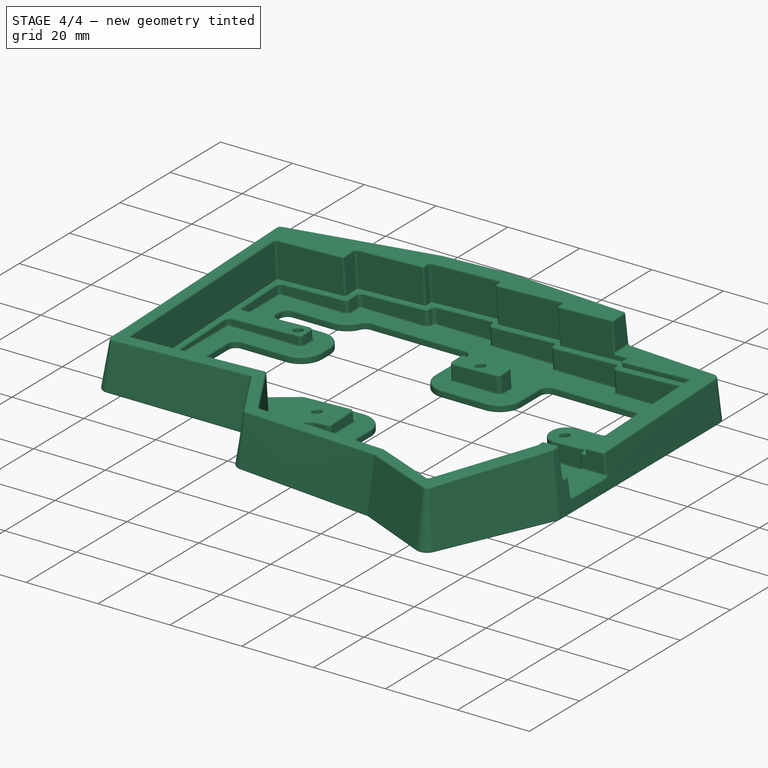
[diagram: stage 4 of 4 — iso view after this stage's code; geometry added in this stage tinted green]
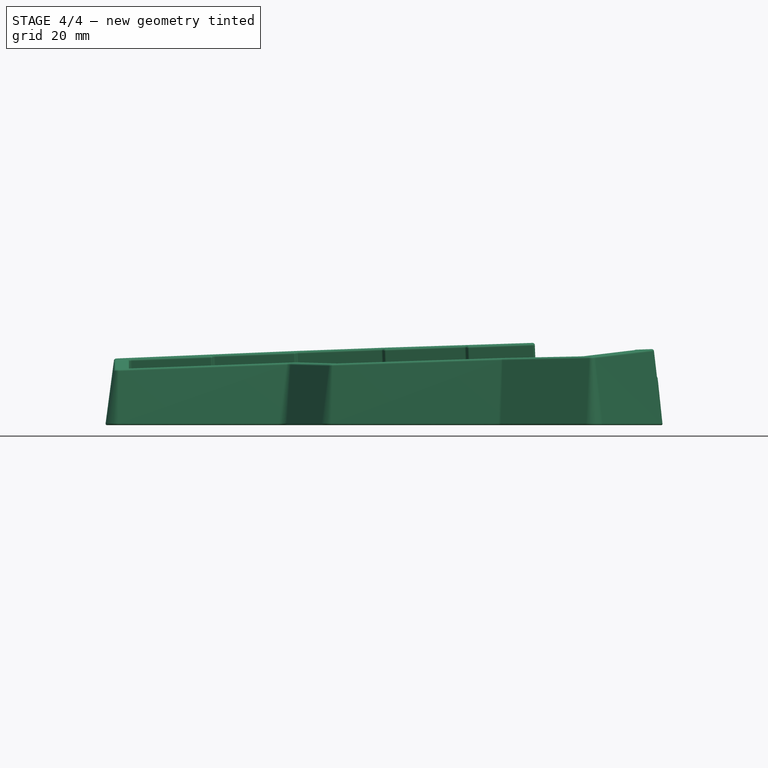
[diagram: stage 4 of 4 — front view after this stage's code; geometry added in this stage tinted green]
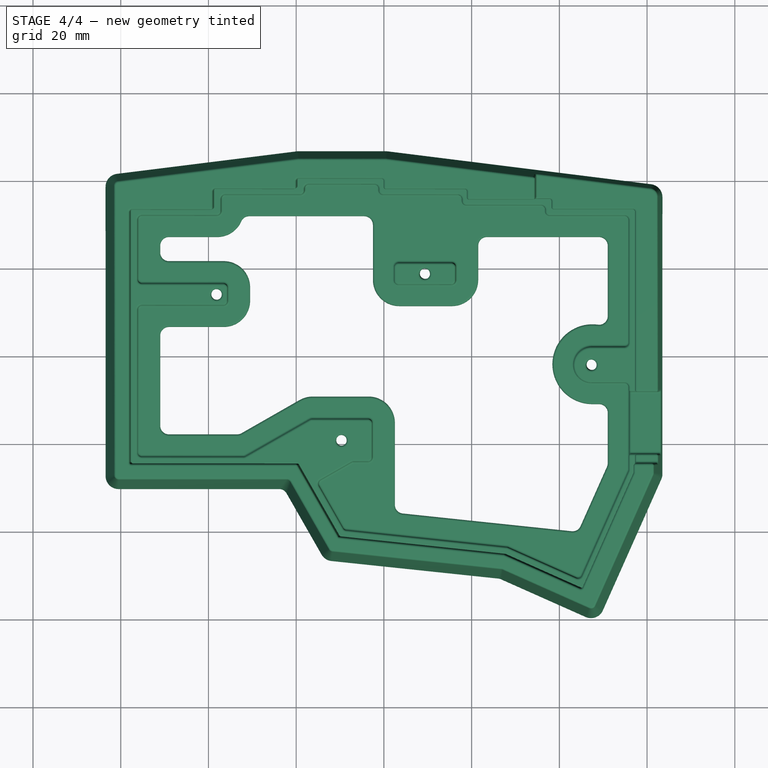
[diagram: stage 4 of 4 — top view after this stage's code; geometry added in this stage tinted green]
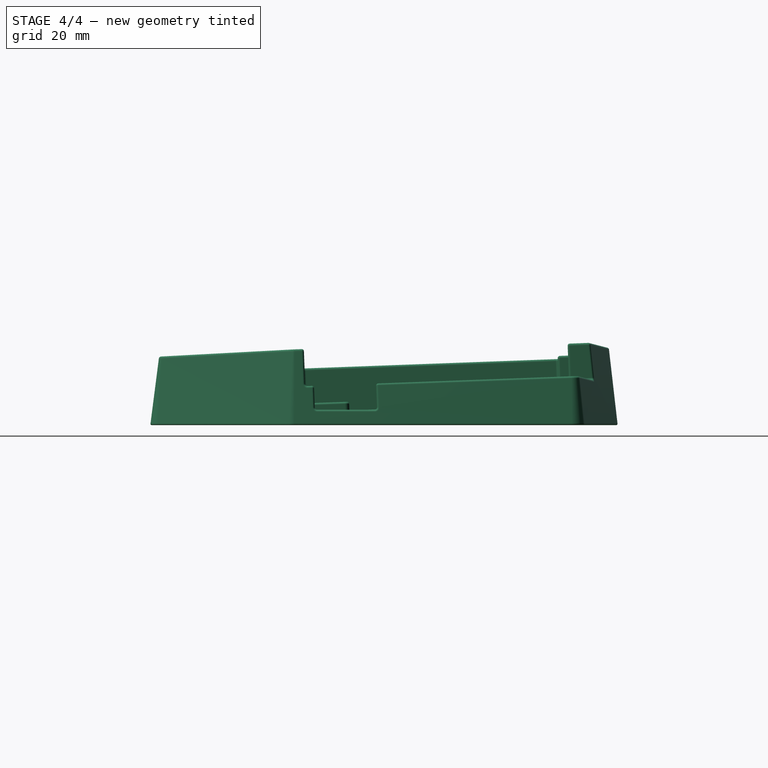
[diagram: stage 4 of 4 — right view after this stage's code; geometry added in this stage tinted green]
FEATURE [PartDesign::Fillet] Fillet
  Base = -> Chamfer [Face77,Edge546,Edge336,Edge404,Edge208,Edge334,Edge338,Face69,Face70,Face71,Face76,Face75,Face74,Face73,Face72]
  BaseFeature = -> Chamfer
  Radius = 0.5
  SupportTransform = false
  UseAllEdges = false
FEATURE [PartDesign::Fillet] Fillet001
  Base = -> Fillet [Face4,Edge232,Edge230,Edge111,Edge228]
  BaseFeature = -> Fillet
  Radius = 0.3
  SupportTransform = false
  UseAllEdges = false
FEATURE [PartDesign::Body] Body
  Group = -> [Sketch,Sketch001,AdditiveLoft,Sketch002,Pocket,Sketch003,Pocket001,Sketch004,Pocket002,Sketch005,Pocket003,Sketch006,Pocket004,Sketch007,Hole,Chamfer,Fillet,Fillet001]
  Origin = -> Origin
  Tip = -> Fillet001
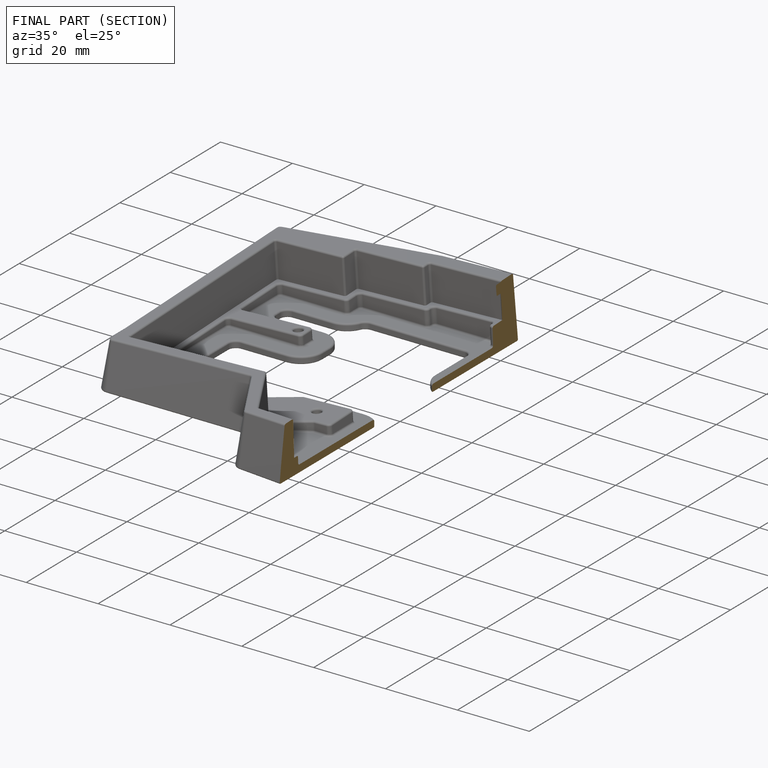
[diagram: finished part — half-section view (interior)]
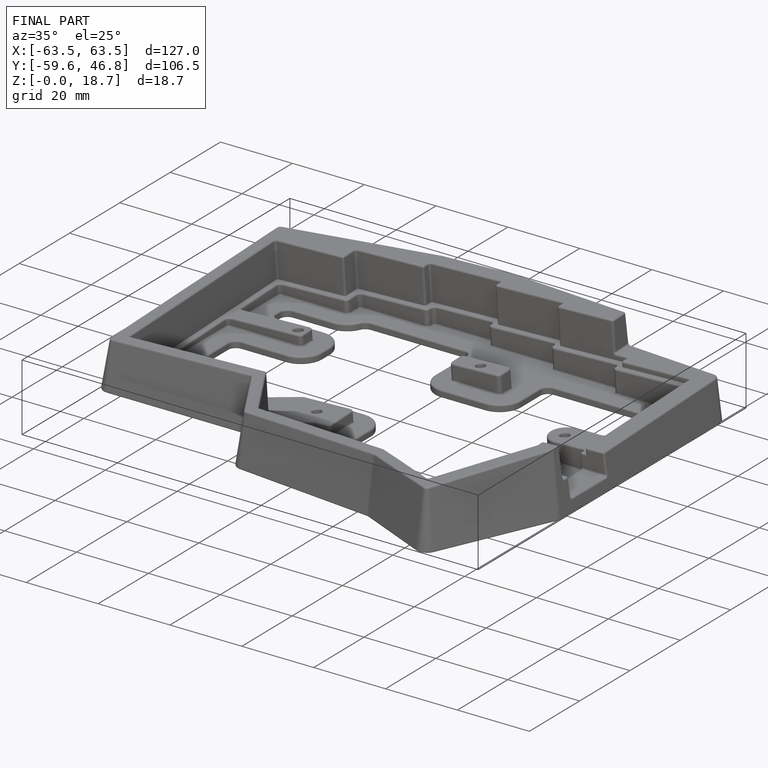
[diagram: finished part — iso view with bounding-box wireframe]
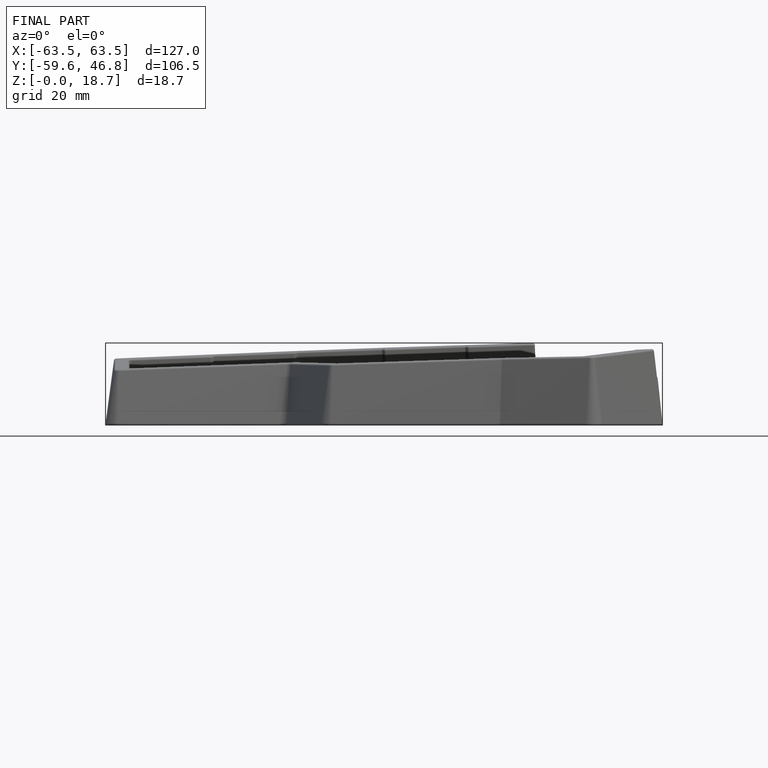
[diagram: finished part — front view with bounding-box wireframe]
